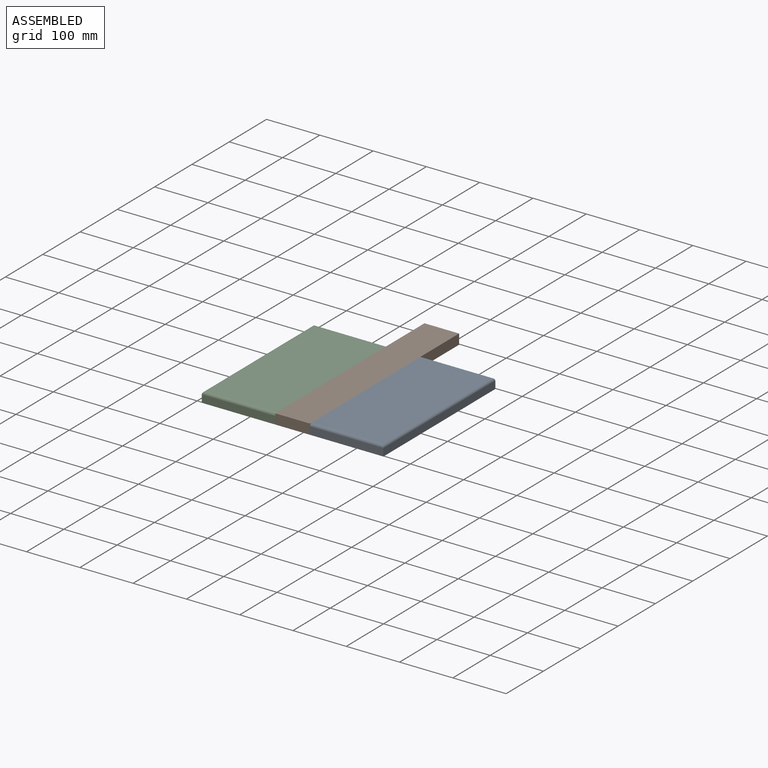
[diagram: assembled view]
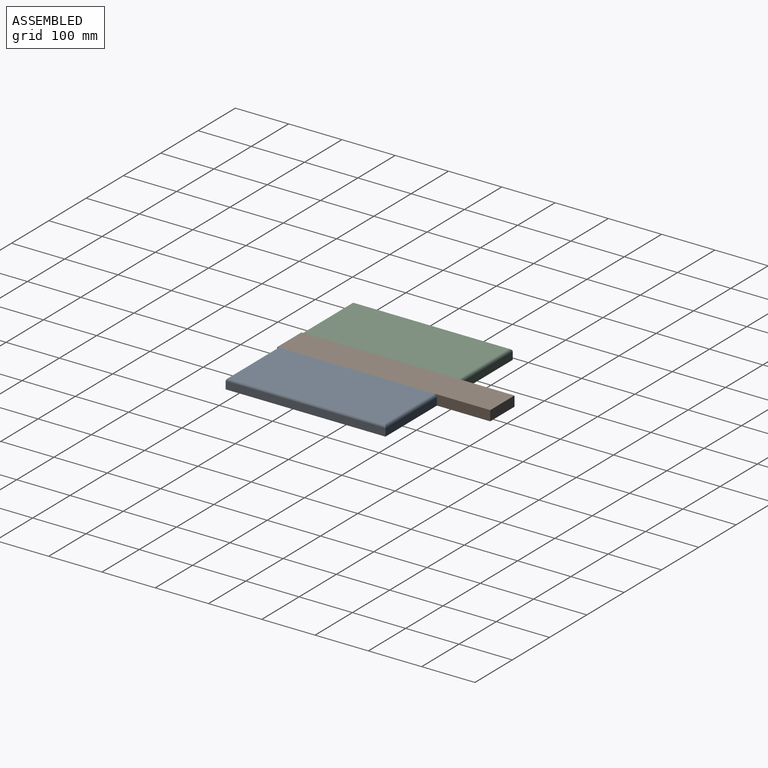
[diagram: assembled view, second angle]
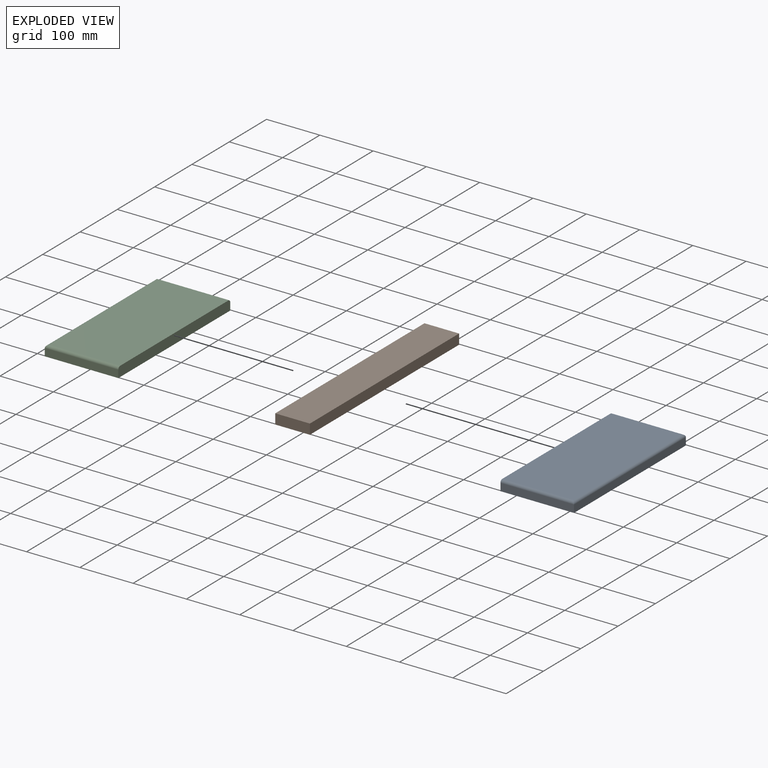
[diagram: exploded view]
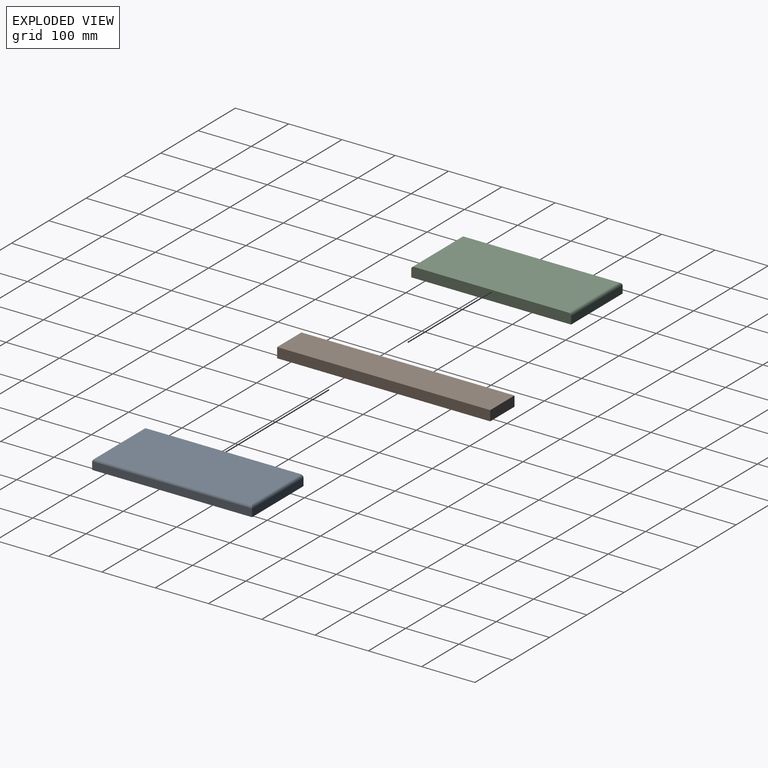
[diagram: exploded view, second angle]
ASSEMBLY  parts=3 mates=2
PART A: 9 faces, bbox 138x300x19 mm
  f0: plane 138x14mm, normal (0,1,0), area 1932mm2, adj f1,f3,f5,f6
  f1: plane 300x19mm, normal (-1,0,0), area 5689.3mm2, adj f0,f2,f4,f5,f6,f8
  f2: plane 138x14mm, normal (0,-1,0), area 1932mm2, adj f1,f3,f5,f8
  f3: plane 300x14mm, normal (1,0,0), area 4200mm2, adj f0,f2,f5,f7
  f4: plane 290x133mm, normal (0,0,1), area 38570mm2, adj f1,f6,f7,f8
  f5: plane 300x138mm, normal (0,0,-1), area 41400mm2, adj f0,f1,f2,f3
  f6: cylinder r=5mm len=138mm, axis (1,0,0), area 1069.6mm2, adj f0,f1,f4,f7
  f7: cylinder r=5mm len=300mm, axis (0,-1,0), area 2327.7mm2, adj f3,f4,f6,f8
  f8: cylinder r=5mm len=138mm, axis (-1,0,0), area 1069.6mm2, adj f1,f2,f4,f7
PART B: 6 faces, bbox 65x400x19 mm
  f0: plane 65x19mm, normal (0,1,0), area 1235mm2, adj f1,f3,f4,f5
  f1: plane 400x19mm, normal (-1,0,0), area 7600mm2, adj f0,f2,f4,f5
  f2: plane 65x19mm, normal (0,-1,0), area 1235mm2, adj f1,f3,f4,f5
  f3: plane 400x19mm, normal (1,0,0), area 7600mm2, adj f0,f2,f4,f5
  f4: plane 400x65mm, normal (0,0,1), area 26000mm2, adj f0,f1,f2,f3
  f5: plane 400x65mm, normal (0,0,-1), area 26000mm2, adj f0,f1,f2,f3
PART C: 9 faces, bbox 138x300x19 mm
  f0: plane 138x14mm, normal (0,1,0), area 1932mm2, adj f1,f3,f5,f6
  f1: plane 300x14mm, normal (-1,0,0), area 4200mm2, adj f0,f2,f5,f7
  f2: plane 138x14mm, normal (0,-1,0), area 1932mm2, adj f1,f3,f5,f8
  f3: plane 300x19mm, normal (1,0,0), area 5689.3mm2, adj f0,f2,f4,f5,f6,f8
  f4: plane 290x133mm, normal (0,0,1), area 38570mm2, adj f3,f6,f7,f8
  f5: plane 300x138mm, normal (0,0,-1), area 41400mm2, adj f0,f1,f2,f3
  f6: cylinder r=5mm len=138mm, axis (1,0,0), area 1069.6mm2, adj f0,f3,f4,f7
  f7: cylinder r=5mm len=300mm, axis (0,1,0), area 2327.7mm2, adj f1,f4,f6,f8
  f8: cylinder r=5mm len=138mm, axis (-1,0,0), area 1069.6mm2, adj f2,f3,f4,f7
PLACE A t=(1146.61,-634.25,254.1)mm
PLACE B t=(837.47,-462.93,254.1)mm
PLACE C t=(1059.8,-1215.71,254.1)mm
MATE parallel A.f1 <-> B.f3  axis (-1,0,0) through (722.5,-515.63,261.1)mm
MATE parallel C.f3 <-> B.f1  axis (1,0,0) through (657.5,-515.63,261.1)mm
